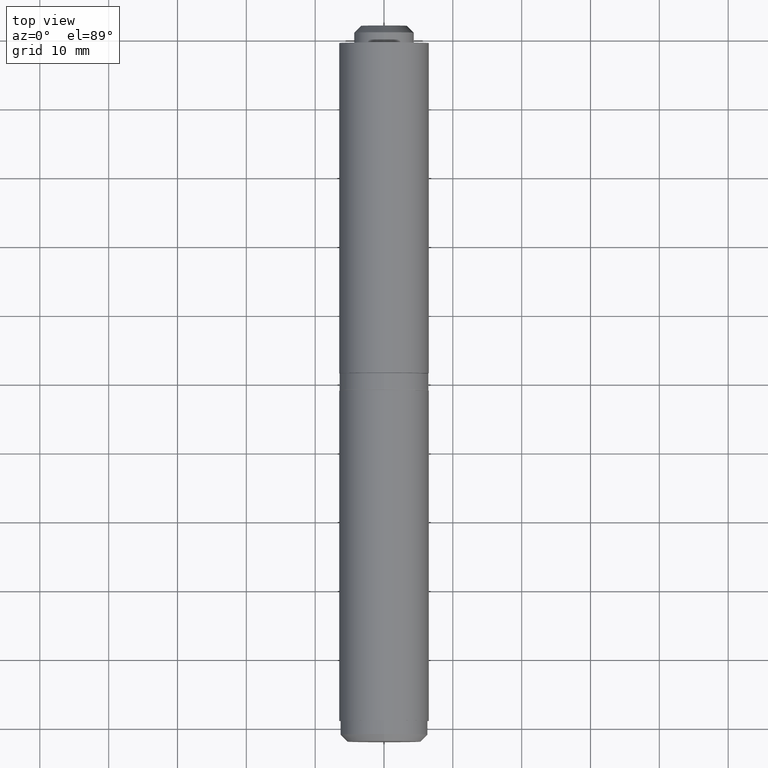
[diagram: clean part render]
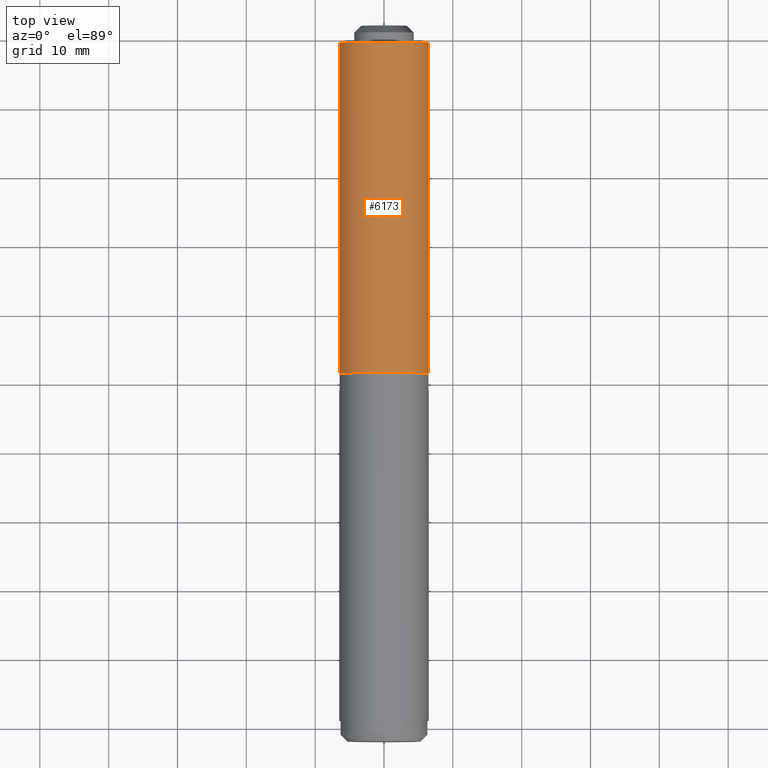
[diagram: same view with one face highlighted and labeled with its STEP entity id]
A machine part, top view. The second image highlights one B-rep face of the part: STEP entity #6173.
In plain terms, the highlighted cylindrical surface (partial cylindrical patch) has radius 6.5 mm, axis along (-0, -1, -0).
Its self-contained STEP definition (entity closure, byte-faithful):
#381 = CARTESIAN_POINT ( 'NONE',  ( -3.479411764705881094, 23.99999999999999289, -5.490327291849393276 ) ) ;
#407 = EDGE_CURVE ( 'NONE', #13327, #10705, #10615, .T. ) ;
#435 = ORIENTED_EDGE ( 'NONE', *, *, #407, .T. ) ;
#441 = CARTESIAN_POINT ( 'NONE',  ( 3.479411764705883314, -24.00000000000000000, -5.490327291849392388 ) ) ;
#532 = ORIENTED_EDGE ( 'NONE', *, *, #12748, .T. ) ;
#544 = DIRECTION ( 'NONE',  ( -0.000000000000000000, -1.000000000000000000, -0.000000000000000000 ) ) ;
#720 = CARTESIAN_POINT ( 'NONE',  ( -3.479411764705881094, -24.00000000000000000, -5.490327291849393276 ) ) ;
#920 = DIRECTION ( 'NONE',  ( 0.000000000000000000, 1.000000000000000000, 0.000000000000000000 ) ) ;
#1008 = VECTOR ( 'NONE', #11249, 1000.000000000000000 ) ;
#1567 = CIRCLE ( 'NONE', #11685, 6.499999999999999112 ) ;
#1712 = EDGE_LOOP ( 'NONE', ( #532, #5918, #13230, #435 ) ) ;
#2097 = DIRECTION ( 'NONE',  ( 0.000000000000000000, 1.000000000000000000, 0.000000000000000000 ) ) ;
#2540 = CARTESIAN_POINT ( 'NONE',  ( 0.000000000000000000, 23.99999999999999289, 0.000000000000000000 ) ) ;
#3194 = CARTESIAN_POINT ( 'NONE',  ( -3.479411764705881094, 23.99999999999999289, -5.490327291849393276 ) ) ;
#3434 = VERTEX_POINT ( 'NONE', #12478 ) ;
#3729 = DIRECTION ( 'NONE',  ( 0.000000000000000000, 0.000000000000000000, -1.000000000000000000 ) ) ;
#3933 = VERTEX_POINT ( 'NONE', #441 ) ;
#5837 = FACE_OUTER_BOUND ( 'NONE', #1712, .T. ) ;
#5918 = ORIENTED_EDGE ( 'NONE', *, *, #13911, .F. ) ;
#6013 = CYLINDRICAL_SURFACE ( 'NONE', #12279, 6.499999999999999112 ) ;
#6173 = ADVANCED_FACE ( 'NONE', ( #5837 ), #6013, .T. ) ;
#6558 = CARTESIAN_POINT ( 'NONE',  ( 3.479411764705883314, 23.99999999999999289, -5.490327291849392388 ) ) ;
#7007 = LINE ( 'NONE', #6558, #11661 ) ;
#8171 = EDGE_CURVE ( 'NONE', #13327, #3434, #1567, .T. ) ;
#8584 = AXIS2_PLACEMENT_3D ( 'NONE', #10750, #920, #13882 ) ;
#9154 = CIRCLE ( 'NONE', #8584, 6.499999999999999112 ) ;
#10615 = LINE ( 'NONE', #381, #1008 ) ;
#10705 = VERTEX_POINT ( 'NONE', #720 ) ;
#10750 = CARTESIAN_POINT ( 'NONE',  ( 0.000000000000000000, -24.00000000000000000, 0.000000000000000000 ) ) ;
#10890 = CARTESIAN_POINT ( 'NONE',  ( 0.000000000000000000, 23.99999999999999289, 0.000000000000000000 ) ) ;
#11249 = DIRECTION ( 'NONE',  ( -0.000000000000000000, -1.000000000000000000, -0.000000000000000000 ) ) ;
#11661 = VECTOR ( 'NONE', #12202, 1000.000000000000000 ) ;
#11685 = AXIS2_PLACEMENT_3D ( 'NONE', #10890, #2097, #11876 ) ;
#11876 = DIRECTION ( 'NONE',  ( 0.000000000000000000, 0.000000000000000000, 1.000000000000000000 ) ) ;
#12202 = DIRECTION ( 'NONE',  ( -0.000000000000000000, -1.000000000000000000, -0.000000000000000000 ) ) ;
#12279 = AXIS2_PLACEMENT_3D ( 'NONE', #2540, #544, #3729 ) ;
#12478 = CARTESIAN_POINT ( 'NONE',  ( 3.479411764705883314, 23.99999999999999289, -5.490327291849392388 ) ) ;
#12748 = EDGE_CURVE ( 'NONE', #10705, #3933, #9154, .T. ) ;
#13230 = ORIENTED_EDGE ( 'NONE', *, *, #8171, .F. ) ;
#13327 = VERTEX_POINT ( 'NONE', #3194 ) ;
#13882 = DIRECTION ( 'NONE',  ( 0.000000000000000000, 0.000000000000000000, 1.000000000000000000 ) ) ;
#13911 = EDGE_CURVE ( 'NONE', #3434, #3933, #7007, .T. ) ;